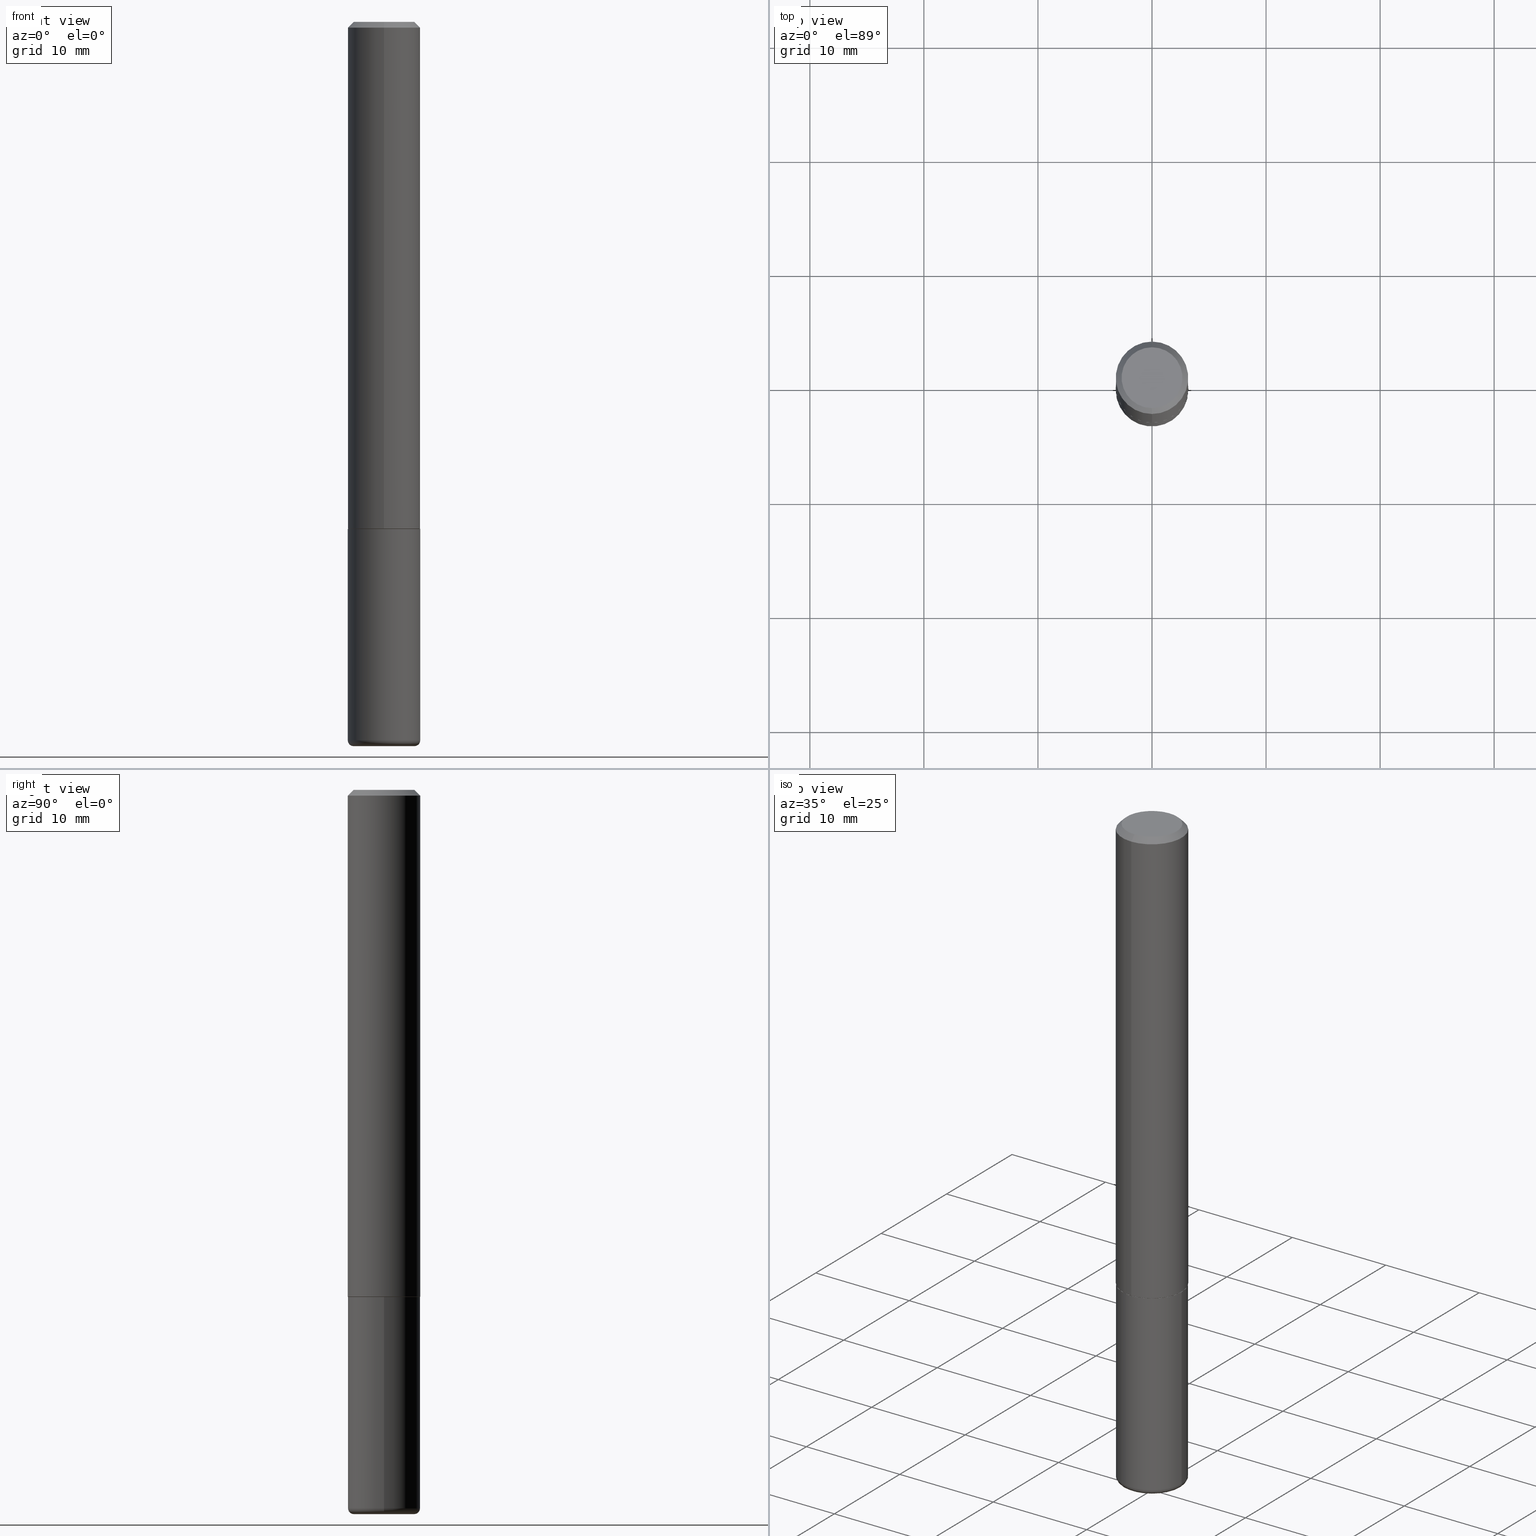
[diagram: canonical four-view strip — front | top / right | iso, engineering-drawing reading convention]
A machine part, canonical four-view strip (front | top / right | iso — engineering-drawing reading convention). The complete STEP part file that produces these views, byte-faithful:
ISO-10303-21;
HEADER;
FILE_DESCRIPTION (( 'STEP AP203' ),
    '1' );
FILE_NAME ('38363.STEP',
    '2024-03-03T00:57:25',
    ( '' ),
    ( '' ),
    'SwSTEP 2.0',
    'SolidWorks 2023',
    '' );
FILE_SCHEMA (( 'CONFIG_CONTROL_DESIGN' ));
ENDSEC;

DATA;
#1 = FACE_OUTER_BOUND ( 'NONE', #175, .T. ) ;
#2 = ORIENTED_EDGE ( 'NONE', *, *, #76, .T. ) ;
#3 = CONICAL_SURFACE ( 'NONE', #339, 0.1250000000000000000, 0.7853981633974473908 ) ;
#4 = ORIENTED_EDGE ( 'NONE', *, *, #275, .T. ) ;
#5 = CARTESIAN_POINT ( 'NONE',  ( 7.332110811570574327E-16, 0.1049999999999999267, -3.217228881981931301E-16 ) ) ;
#6 = CALENDAR_DATE ( 2024, 2, 3 ) ;
#7 = ORIENTED_EDGE ( 'NONE', *, *, #291, .F. ) ;
#8 = DIRECTION ( 'NONE',  ( 1.000000000000000000, -6.982962677686269077E-15, 4.883557194083113462E-29 ) ) ;
#9 = CONICAL_SURFACE ( 'NONE', #251, 0.1250000000000000000, 0.7853981633974473908 ) ;
#10 = ADVANCED_FACE ( 'NONE', ( #376 ), #301, .F. ) ;
#11 = DIRECTION ( 'NONE',  ( 6.982962677686265922E-15, 1.000000000000000000, -3.490276172475858378E-15 ) ) ;
#12 = ORIENTED_EDGE ( 'NONE', *, *, #198, .T. ) ;
#13 = ORIENTED_EDGE ( 'NONE', *, *, #166, .F. ) ;
#14 = UNCERTAINTY_MEASURE_WITH_UNIT (LENGTH_MEASURE( 1.000000000000000082E-05 ), #184, 'distance_accuracy_value', 'NONE');
#15 = ORIENTED_EDGE ( 'NONE', *, *, #371, .F. ) ;
#16 = CARTESIAN_POINT ( 'NONE',  ( 8.881784197001260212E-16, 0.1250000000000001110, -4.362845215594827410E-16 ) ) ;
#17 = DIRECTION ( 'NONE',  ( -6.982962677686266711E-15, -1.000000000000000000, 3.490276172475858772E-15 ) ) ;
#18 = AXIS2_PLACEMENT_3D ( 'NONE', #269, #110, #84 ) ;
#19 = PERSON_AND_ORGANIZATION ( #159, #388 ) ;
#20 = DIRECTION ( 'NONE',  ( -6.982962677686265922E-15, -1.000000000000000000, 3.490276172475858378E-15 ) ) ;
#21 = EDGE_CURVE ( 'NONE', #139, #290, #224, .T. ) ;
#22 = ADVANCED_BREP_SHAPE_REPRESENTATION ( '38363', ( #182, #318, #226 ), #148 ) ;
#23 = FACE_OUTER_BOUND ( 'NONE', #167, .T. ) ;
#24 = DATE_TIME_ROLE ( 'classification_date' ) ;
#25 = LINE ( 'NONE', #276, #185 ) ;
#26 = PERSON_AND_ORGANIZATION_ROLE ( 'classification_officer' ) ;
#27 = CIRCLE ( 'NONE', #18, 0.1050000000000000100 ) ;
#28 = PLANE ( 'NONE',  #317 ) ;
#29 = DIRECTION ( 'NONE',  ( -2.446310369361453361E-29, 3.490276172475858772E-15, 1.000000000000000000 ) ) ;
#30 = ADVANCED_FACE ( 'NONE', ( #240 ), #341, .T. ) ;
#31 = LINE ( 'NONE', #395, #100 ) ;
#32 = ORIENTED_EDGE ( 'NONE', *, *, #21, .T. ) ;
#33 = AXIS2_PLACEMENT_3D ( 'NONE', #415, #127, #20 ) ;
#34 = CC_DESIGN_SECURITY_CLASSIFICATION ( #332, ( #129 ) ) ;
#35 = DIRECTION ( 'NONE',  ( -4.851104656540959542E-15, -0.7071067811865493491, -0.7071067811865457964 ) ) ;
#36 = APPROVAL_ROLE ( '' ) ;
#37 = VERTEX_POINT ( 'NONE', #313 ) ;
#38 = LINE ( 'NONE', #197, #417 ) ;
#39 = ORIENTED_EDGE ( 'NONE', *, *, #371, .T. ) ;
#40 = CIRCLE ( 'NONE', #128, 0.1250000000000002498 ) ;
#41 = ADVANCED_FACE ( 'NONE', ( #154 ), #87, .T. ) ;
#42 = APPROVAL_PERSON_ORGANIZATION ( #277, #373, #355 ) ;
#43 = CARTESIAN_POINT ( 'NONE',  ( -0.1250000000000000000, -6.496304611953128320E-15, -1.750000000000000222 ) ) ;
#44 = ORIENTED_EDGE ( 'NONE', *, *, #359, .F. ) ;
#45 = DIRECTION ( 'NONE',  ( 4.937700262164543309E-15, 0.7071067811865444641, -0.7071067811865506814 ) ) ;
#46 = ORIENTED_EDGE ( 'NONE', *, *, #291, .T. ) ;
#47 = ADVANCED_FACE ( 'NONE', ( #346 ), #248, .T. ) ;
#48 = FACE_OUTER_BOUND ( 'NONE', #225, .T. ) ;
#49 = VERTEX_POINT ( 'NONE', #379 ) ;
#50 = AXIS2_PLACEMENT_3D ( 'NONE', #53, #183, #17 ) ;
#51 = APPROVAL_PERSON_ORGANIZATION ( #19, #233, #36 ) ;
#52 = CARTESIAN_POINT ( 'NONE',  ( 4.281043146382543451E-29, -6.107983301832753147E-15, -1.750000000000000222 ) ) ;
#53 = CARTESIAN_POINT ( 'NONE',  ( 0.000000000000000000, 0.000000000000000000, 0.000000000000000000 ) ) ;
#54 = CALENDAR_DATE ( 2024, 2, 3 ) ;
#55 = DIRECTION ( 'NONE',  ( -2.446310369361453361E-29, 3.490276172475858378E-15, 1.000000000000000000 ) ) ;
#56 = DIRECTION ( 'NONE',  ( 1.000000000000000000, -6.982962677686269077E-15, 4.883557194083113462E-29 ) ) ;
#57 = FACE_OUTER_BOUND ( 'NONE', #113, .T. ) ;
#58 = APPROVAL_DATE_TIME ( #347, #59 ) ;
#59 = APPROVAL ( #282, 'UNSPECIFIED' ) ;
#60 = PLANE ( 'NONE',  #66 ) ;
#61 = PERSON_AND_ORGANIZATION_ROLE ( 'design_supplier' ) ;
#62 = DIRECTION ( 'NONE',  ( -6.982962677686265922E-15, -1.000000000000000000, 4.406206441393973340E-15 ) ) ;
#63 = CIRCLE ( 'NONE', #222, 0.1250000000000002498 ) ;
#64 = CARTESIAN_POINT ( 'NONE',  ( -0.1050000000000000100, -7.912803847782896575E-15, -2.480000000000000426 ) ) ;
#65 = DIRECTION ( 'NONE',  ( 1.000000000000000000, -6.982962677686263555E-15, 0.000000000000000000 ) ) ;
#66 = AXIS2_PLACEMENT_3D ( 'NONE', #92, #213, #353 ) ;
#67 = MECHANICAL_CONTEXT ( 'NONE', #119, 'mechanical' ) ;
#68 = CIRCLE ( 'NONE', #246, 0.1239999999999999991 ) ;
#69 = CIRCLE ( 'NONE', #155, 0.1250000000000000000 ) ;
#70 = ORIENTED_EDGE ( 'NONE', *, *, #140, .T. ) ;
#71 = ADVANCED_FACE ( 'NONE', ( #57 ), #3, .T. ) ;
#72 = CC_DESIGN_PERSON_AND_ORGANIZATION_ASSIGNMENT ( #194, #61, ( #129 ) ) ;
#73 = DIRECTION ( 'NONE',  ( -2.446310369361453361E-29, 3.490276172475858772E-15, 1.000000000000000000 ) ) ;
#74 = ORIENTED_EDGE ( 'NONE', *, *, #216, .T. ) ;
#75 = FACE_OUTER_BOUND ( 'NONE', #302, .T. ) ;
#76 = EDGE_CURVE ( 'NONE', #179, #396, #151, .T. ) ;
#77 = ORIENTED_EDGE ( 'NONE', *, *, #275, .F. ) ;
#78 = CARTESIAN_POINT ( 'NONE',  ( 4.279570410823989044E-29, -6.110092342975505460E-15, -1.750000000000000222 ) ) ;
#79 = APPROVAL_DATE_TIME ( #400, #233 ) ;
#80 = ORIENTED_EDGE ( 'NONE', *, *, #217, .T. ) ;
#81 = CARTESIAN_POINT ( 'NONE',  ( 0.1250000000000000555, -9.531744055041784983E-15, -2.480000000000000426 ) ) ;
#82 = ORIENTED_EDGE ( 'NONE', *, *, #169, .T. ) ;
#83 = CIRCLE ( 'NONE', #310, 0.1239999999999999991 ) ;
#84 = DIRECTION ( 'NONE',  ( 1.000000000000000000, -6.982962677686258033E-15, 0.000000000000000000 ) ) ;
#85 = PRODUCT ( '38363', '38363', '', ( #67 ) ) ;
#86 = APPLICATION_PROTOCOL_DEFINITION ( 'international standard', 'config_control_design', 1994, #207 ) ;
#87 = CYLINDRICAL_SURFACE ( 'NONE', #330, 0.1250000000000000000 ) ;
#88 = AXIS2_PLACEMENT_3D ( 'NONE', #130, #98, #360 ) ;
#89 = CC_DESIGN_DATE_AND_TIME_ASSIGNMENT ( #284, #24, ( #332 ) ) ;
#90 = CARTESIAN_POINT ( 'NONE',  ( 6.064762639339139522E-29, -8.658873720331001644E-15, -2.480000000000000426 ) ) ;
#91 = DIRECTION ( 'NONE',  ( 2.446310369361453361E-29, -3.490276172475858772E-15, -1.000000000000000000 ) ) ;
#92 = CARTESIAN_POINT ( 'NONE',  ( 4.279570410823989044E-29, -6.110092342975505460E-15, -1.750000000000000222 ) ) ;
#93 = SHAPE_DEFINITION_REPRESENTATION ( #402, #22 ) ;
#94 = AXIS2_PLACEMENT_3D ( 'NONE', #403, #405, #363 ) ;
#95 = APPROVAL_STATUS ( 'not_yet_approved' ) ;
#96 = ADVANCED_FACE ( 'NONE', ( #23 ), #9, .T. ) ;
#97 = VERTEX_POINT ( 'NONE', #350 ) ;
#98 = DIRECTION ( 'NONE',  ( -2.445468806185136597E-29, 3.491481338843145583E-15, 1.000000000000000000 ) ) ;
#99 = ORIENTED_EDGE ( 'NONE', *, *, #166, .T. ) ;
#100 = VECTOR ( 'NONE', #45, 39.37007874015748143 ) ;
#101 = DIRECTION ( 'NONE',  ( -6.982962677686265922E-15, -1.000000000000000000, 4.406206441393973340E-15 ) ) ;
#102 = ORIENTED_EDGE ( 'NONE', *, *, #21, .F. ) ;
#103 = DIRECTION ( 'NONE',  ( -2.446310369361453080E-29, 3.490276172475858378E-15, 1.000000000000000000 ) ) ;
#104 = ORIENTED_EDGE ( 'NONE', *, *, #337, .T. ) ;
#105 = AXIS2_PLACEMENT_3D ( 'NONE', #5, #399, #11 ) ;
#106 = AXIS2_PLACEMENT_3D ( 'NONE', #211, #236, #369 ) ;
#107 = DIRECTION ( 'NONE',  ( -6.982962677686266711E-15, -1.000000000000000000, 3.491481338843145583E-15 ) ) ;
#108 = ORIENTED_EDGE ( 'NONE', *, *, #337, .F. ) ;
#109 = EDGE_CURVE ( 'NONE', #179, #37, #83, .T. ) ;
#110 = DIRECTION ( 'NONE',  ( -2.445468806185136597E-29, 3.491481338843145583E-15, 1.000000000000000000 ) ) ;
#111 = ORIENTED_EDGE ( 'NONE', *, *, #366, .F. ) ;
#112 = DIRECTION ( 'NONE',  ( -6.982962677686265922E-15, -1.000000000000000000, 3.490276172475858378E-15 ) ) ;
#113 = EDGE_LOOP ( 'NONE', ( #206, #370, #196, #135 ) ) ;
#114 = ORIENTED_EDGE ( 'NONE', *, *, #109, .F. ) ;
#115 = AXIS2_PLACEMENT_3D ( 'NONE', #336, #204, #334 ) ;
#116 = EDGE_CURVE ( 'NONE', #266, #401, #293, .T. ) ;
#117 = DATE_AND_TIME ( #54, #406 ) ;
#118 = DATE_TIME_ROLE ( 'creation_date' ) ;
#119 = APPLICATION_CONTEXT ( 'configuration controlled 3d designs of mechanical parts and assemblies' ) ;
#120 = CARTESIAN_POINT ( 'NONE',  ( 4.278596836013182697E-29, -6.104493025660276744E-15, -1.749000000000000110 ) ) ;
#121 = AXIS2_PLACEMENT_3D ( 'NONE', #123, #221, #190 ) ;
#122 = CARTESIAN_POINT ( 'NONE',  ( -8.575622497214408537E-16, -0.1250000000000000555, -0.01999999999999959102 ) ) ;
#123 = CARTESIAN_POINT ( 'NONE',  ( 0.000000000000000000, 0.000000000000000000, 0.000000000000000000 ) ) ;
#124 = DATE_AND_TIME ( #126, #261 ) ;
#125 = DIRECTION ( 'NONE',  ( -1.000000000000000000, 6.982962677686265922E-15, -4.876176775795935793E-29 ) ) ;
#126 = CALENDAR_DATE ( 2024, 2, 3 ) ;
#127 = DIRECTION ( 'NONE',  ( -2.446310369361453361E-29, 3.490276172475858772E-15, 1.000000000000000000 ) ) ;
#128 = AXIS2_PLACEMENT_3D ( 'NONE', #120, #245, #391 ) ;
#129 = PRODUCT_DEFINITION_FORMATION_WITH_SPECIFIED_SOURCE ( 'ANY', '', #85, .NOT_KNOWN. ) ;
#130 = CARTESIAN_POINT ( 'NONE',  ( 6.064762639339139522E-29, -8.658873720331001644E-15, -2.480000000000000426 ) ) ;
#131 = ORIENTED_EDGE ( 'NONE', *, *, #256, .T. ) ;
#132 = LINE ( 'NONE', #325, #191 ) ;
#133 = ADVANCED_FACE ( 'NONE', ( #408 ), #28, .T. ) ;
#134 = CARTESIAN_POINT ( 'NONE',  ( 4.281043146382543451E-29, -6.107983301832753147E-15, -1.750000000000000222 ) ) ;
#135 = ORIENTED_EDGE ( 'NONE', *, *, #381, .T. ) ;
#136 = TOROIDAL_SURFACE ( 'NONE', #374, 0.1050000000000000100, 0.02000000000000015307 ) ;
#137 = ORIENTED_EDGE ( 'NONE', *, *, #193, .F. ) ;
#138 = EDGE_LOOP ( 'NONE', ( #228, #74, #4, #44 ) ) ;
#139 = VERTEX_POINT ( 'NONE', #283 ) ;
#140 = EDGE_CURVE ( 'NONE', #308, #263, #199, .T. ) ;
#141 = AXIS2_PLACEMENT_3D ( 'NONE', #170, #292, #393 ) ;
#142 = CARTESIAN_POINT ( 'NONE',  ( 0.1250000000000000000, -6.982962677686288010E-15, -1.750000000000000222 ) ) ;
#143 = FACE_OUTER_BOUND ( 'NONE', #255, .T. ) ;
#144 = CARTESIAN_POINT ( 'NONE',  ( 0.1050000000000000100, -9.392084801488059965E-15, -2.480000000000000426 ) ) ;
#145 = VERTEX_POINT ( 'NONE', #122 ) ;
#146 = PRODUCT_RELATED_PRODUCT_CATEGORY ( 'detail', '', ( #85 ) ) ;
#147 = CARTESIAN_POINT ( 'NONE',  ( -8.728703347107421208E-16, -0.1250000000000063560, -1.748999999999999666 ) ) ;
#148 =( GEOMETRIC_REPRESENTATION_CONTEXT ( 3 ) GLOBAL_UNCERTAINTY_ASSIGNED_CONTEXT ( ( #14 ) ) GLOBAL_UNIT_ASSIGNED_CONTEXT ( ( #184, #223, #161 ) ) REPRESENTATION_CONTEXT ( 'NONE', 'WORKASPACE' ) );
#149 = APPROVAL_STATUS ( 'not_yet_approved' ) ;
#150 = CARTESIAN_POINT ( 'NONE',  ( -8.658873720330540358E-16, -0.1240000000000061053, -1.749999999999999556 ) ) ;
#151 = LINE ( 'NONE', #383, #153 ) ;
#152 = ADVANCED_FACE ( 'NONE', ( #215 ), #60, .F. ) ;
#153 = VECTOR ( 'NONE', #281, 39.37007874015748143 ) ;
#154 = FACE_OUTER_BOUND ( 'NONE', #201, .T. ) ;
#155 = AXIS2_PLACEMENT_3D ( 'NONE', #78, #243, #372 ) ;
#156 = COORDINATED_UNIVERSAL_TIME_OFFSET ( 5, 0, .BEHIND. ) ;
#157 = CARTESIAN_POINT ( 'NONE',  ( -2.970324451617953153E-29, -2.173750331693769768E-14, -2.500000000000000000 ) ) ;
#158 = APPROVAL_DATE_TIME ( #124, #373 ) ;
#159 = PERSON ( 'UNSPECIFIED', 'UNSPECIFIED', 'UNSPECIFIED', ('UNSPECIFIED'), ('UNSPECIFIED'), ('UNSPECIFIED') ) ;
#160 = DIRECTION ( 'NONE',  ( -1.000000000000000000, 7.105427357601014480E-15, 0.000000000000000000 ) ) ;
#161 =( NAMED_UNIT ( * ) SI_UNIT ( $, .STERADIAN. ) SOLID_ANGLE_UNIT ( ) );
#162 = DIRECTION ( 'NONE',  ( -2.446310369361453361E-29, 3.490276172475858772E-15, 1.000000000000000000 ) ) ;
#163 = CONICAL_SURFACE ( 'NONE', #398, 0.1239999999999999991, 0.7853981633975336552 ) ;
#164 = DIRECTION ( 'NONE',  ( 1.000000000000000000, 0.000000000000000000, 0.000000000000000000 ) ) ;
#165 = CARTESIAN_POINT ( 'NONE',  ( 6.064762639339139522E-29, -8.658873720331001644E-15, -2.480000000000000426 ) ) ;
#166 = EDGE_CURVE ( 'NONE', #331, #49, #259, .T. ) ;
#167 = EDGE_LOOP ( 'NONE', ( #364, #390, #234, #202 ) ) ;
#168 = PERSON_AND_ORGANIZATION ( #159, #388 ) ;
#169 = EDGE_CURVE ( 'NONE', #401, #266, #324, .T. ) ;
#170 = CARTESIAN_POINT ( 'NONE',  ( 6.113672015462842613E-29, -8.728703347107866520E-15, -2.500000000000000444 ) ) ;
#171 = AXIS2_PLACEMENT_3D ( 'NONE', #52, #181, #300 ) ;
#172 = LINE ( 'NONE', #296, #200 ) ;
#173 = EDGE_LOOP ( 'NONE', ( #70, #294 ) ) ;
#174 = FACE_OUTER_BOUND ( 'NONE', #389, .T. ) ;
#175 = EDGE_LOOP ( 'NONE', ( #328, #104, #7, #392 ) ) ;
#176 = ADVANCED_FACE ( 'NONE', ( #316 ), #136, .T. ) ;
#177 = COORDINATED_UNIVERSAL_TIME_OFFSET ( 5, 0, .BEHIND. ) ;
#178 = CYLINDRICAL_SURFACE ( 'NONE', #94, 0.1250000000000001110 ) ;
#179 = VERTEX_POINT ( 'NONE', #150 ) ;
#180 = TOROIDAL_SURFACE ( 'NONE', #410, 0.1050000000000000100, 0.02000000000000015307 ) ;
#181 = DIRECTION ( 'NONE',  ( -2.446310369361453361E-29, 3.490276172475858772E-15, 1.000000000000000000 ) ) ;
#182 = MANIFOLD_SOLID_BREP ( 'Body-Move/Copy2[1]', #210 ) ;
#183 = DIRECTION ( 'NONE',  ( -2.446310369361453361E-29, 3.490276172475858772E-15, 1.000000000000000000 ) ) ;
#184 =( CONVERSION_BASED_UNIT ( 'INCH', #342 ) LENGTH_UNIT ( ) NAMED_UNIT ( #268 ) );
#185 = VECTOR ( 'NONE', #407, 39.37007874015748143 ) ;
#186 = LOCAL_TIME ( 19, 57, 25.00000000000000000, #156 ) ;
#187 = CARTESIAN_POINT ( 'NONE',  ( 0.000000000000000000, 0.000000000000000000, 0.000000000000000000 ) ) ;
#188 = DIRECTION ( 'NONE',  ( 6.982962677686265922E-15, 1.000000000000000000, -3.483106191921935554E-15 ) ) ;
#189 = EDGE_CURVE ( 'NONE', #396, #145, #25, .T. ) ;
#190 = DIRECTION ( 'NONE',  ( 1.000000000000000000, -6.982962677686266711E-15, 4.876176775795935793E-29 ) ) ;
#191 = VECTOR ( 'NONE', #35, 39.37007874015748143 ) ;
#192 = CARTESIAN_POINT ( 'NONE',  ( -2.189746715388963618E-45, 3.124223679955351557E-31, 8.951221982354351893E-17 ) ) ;
#193 = EDGE_CURVE ( 'NONE', #307, #396, #40, .T. ) ;
#194 = PERSON_AND_ORGANIZATION ( #159, #388 ) ;
#195 = CARTESIAN_POINT ( 'NONE',  ( 4.892620738722911906E-31, -6.980552344951725975E-17, -0.02000000000000002470 ) ) ;
#196 = ORIENTED_EDGE ( 'NONE', *, *, #279, .T. ) ;
#197 = CARTESIAN_POINT ( 'NONE',  ( -0.1250000000000000000, 8.881784197001252323E-16, -6.148668862818632227E-30 ) ) ;
#198 = EDGE_CURVE ( 'NONE', #49, #263, #38, .T. ) ;
#199 = CIRCLE ( 'NONE', #247, 0.1250000000000000000 ) ;
#200 = VECTOR ( 'NONE', #322, 39.37007874015748143 ) ;
#201 = EDGE_LOOP ( 'NONE', ( #80, #12, #297, #77 ) ) ;
#202 = ORIENTED_EDGE ( 'NONE', *, *, #279, .F. ) ;
#203 = AXIS2_PLACEMENT_3D ( 'NONE', #303, #103, #112 ) ;
#204 = DIRECTION ( 'NONE',  ( -2.446310369361453361E-29, 3.490276172475858772E-15, 1.000000000000000000 ) ) ;
#205 = CARTESIAN_POINT ( 'NONE',  ( 6.064762639339139522E-29, -8.658873720331001644E-15, -2.480000000000000426 ) ) ;
#206 = ORIENTED_EDGE ( 'NONE', *, *, #208, .F. ) ;
#207 = APPLICATION_CONTEXT ( 'configuration controlled 3d designs of mechanical parts and assemblies' ) ;
#208 = EDGE_CURVE ( 'NONE', #266, #145, #132, .T. ) ;
#209 = EDGE_LOOP ( 'NONE', ( #333, #15 ) ) ;
#210 = CLOSED_SHELL ( 'NONE', ( #41, #354, #152, #47, #176, #133 ) ) ;
#211 = CARTESIAN_POINT ( 'NONE',  ( 4.892620738722911906E-31, -6.980552344951725975E-17, -0.02000000000000002470 ) ) ;
#212 = DIRECTION ( 'NONE',  ( 1.000000000000000000, -6.982962677686275388E-15, 0.000000000000000000 ) ) ;
#213 = DIRECTION ( 'NONE',  ( 2.438088387897960049E-29, -3.491481338843145188E-15, -1.000000000000000000 ) ) ;
#214 = ADVANCED_FACE ( 'NONE', ( #1 ), #163, .T. ) ;
#215 = FACE_OUTER_BOUND ( 'NONE', #173, .T. ) ;
#216 = EDGE_CURVE ( 'NONE', #49, #290, #344, .T. ) ;
#217 = EDGE_CURVE ( 'NONE', #290, #49, #265, .T. ) ;
#218 = DIRECTION ( 'NONE',  ( 6.982962677686265922E-15, 1.000000000000000000, -3.483106191921935554E-15 ) ) ;
#219 = PERSON_AND_ORGANIZATION ( #159, #388 ) ;
#220 = AXIS2_PLACEMENT_3D ( 'NONE', #64, #382, #160 ) ;
#221 = DIRECTION ( 'NONE',  ( -2.445468806185136597E-29, 3.491481338843145583E-15, 1.000000000000000000 ) ) ;
#222 = AXIS2_PLACEMENT_3D ( 'NONE', #262, #271, #264 ) ;
#223 =( NAMED_UNIT ( * ) PLANE_ANGLE_UNIT ( ) SI_UNIT ( $, .RADIAN. ) );
#224 = CIRCLE ( 'NONE', #286, 0.02000000000000016348 ) ;
#225 = EDGE_LOOP ( 'NONE', ( #114, #404 ) ) ;
#226 = AXIS2_PLACEMENT_3D ( 'NONE', #253, #287, #164 ) ;
#227 = ORIENTED_EDGE ( 'NONE', *, *, #217, .F. ) ;
#228 = ORIENTED_EDGE ( 'NONE', *, *, #198, .F. ) ;
#229 = CARTESIAN_POINT ( 'NONE',  ( -0.1050000000000000100, -7.876664387595318143E-15, -2.500000000000000444 ) ) ;
#230 = ORIENTED_EDGE ( 'NONE', *, *, #387, .T. ) ;
#231 = CC_DESIGN_APPROVAL ( #59, ( #332 ) ) ;
#232 = PLANE ( 'NONE',  #203 ) ;
#233 = APPROVAL ( #149, 'UNSPECIFIED' ) ;
#234 = ORIENTED_EDGE ( 'NONE', *, *, #366, .T. ) ;
#235 = CC_DESIGN_DATE_AND_TIME_ASSIGNMENT ( #117, #118, ( #357 ) ) ;
#236 = DIRECTION ( 'NONE',  ( -2.446310369361453361E-29, 3.490276172475858772E-15, 1.000000000000000000 ) ) ;
#237 = EDGE_CURVE ( 'NONE', #139, #331, #305, .T. ) ;
#238 = ORIENTED_EDGE ( 'NONE', *, *, #216, .F. ) ;
#239 = DIRECTION ( 'NONE',  ( 5.024295867788490741E-15, 0.7071067811866103003, 0.7071067811864847341 ) ) ;
#240 = FACE_OUTER_BOUND ( 'NONE', #394, .T. ) ;
#241 = ORIENTED_EDGE ( 'NONE', *, *, #189, .T. ) ;
#242 = CIRCLE ( 'NONE', #106, 0.1250000000000000000 ) ;
#243 = DIRECTION ( 'NONE',  ( -2.445468806185136597E-29, 3.491481338843145583E-15, 1.000000000000000000 ) ) ;
#244 = PERSON_AND_ORGANIZATION ( #159, #388 ) ;
#245 = DIRECTION ( 'NONE',  ( -2.446310369361453361E-29, 3.490276172475858772E-15, 1.000000000000000000 ) ) ;
#246 = AXIS2_PLACEMENT_3D ( 'NONE', #361, #73, #329 ) ;
#247 = AXIS2_PLACEMENT_3D ( 'NONE', #385, #413, #321 ) ;
#248 = CYLINDRICAL_SURFACE ( 'NONE', #121, 0.1250000000000000000 ) ;
#249 = PERSON_AND_ORGANIZATION_ROLE ( 'creator' ) ;
#250 = DIRECTION ( 'NONE',  ( 2.446310369361453361E-29, -3.490276172475858772E-15, -1.000000000000000000 ) ) ;
#251 = AXIS2_PLACEMENT_3D ( 'NONE', #195, #91, #218 ) ;
#252 = CONICAL_SURFACE ( 'NONE', #171, 0.1239999999999999991, 0.7853981633975336552 ) ;
#253 = CARTESIAN_POINT ( 'NONE',  ( 0.000000000000000000, 0.000000000000000000, 0.000000000000000000 ) ) ;
#254 = CARTESIAN_POINT ( 'NONE',  ( -7.889572697437255223E-16, -0.1049999999999999267, 4.559912179335083715E-16 ) ) ;
#255 = EDGE_LOOP ( 'NONE', ( #46, #230, #111, #298 ) ) ;
#256 = EDGE_CURVE ( 'NONE', #37, #179, #68, .T. ) ;
#257 = DIRECTION ( 'NONE',  ( -2.445468806185136597E-29, 3.491481338843145583E-15, 1.000000000000000000 ) ) ;
#258 = COORDINATED_UNIVERSAL_TIME_OFFSET ( 5, 0, .BEHIND. ) ;
#259 = CIRCLE ( 'NONE', #220, 0.02000000000000016348 ) ;
#260 = ORIENTED_EDGE ( 'NONE', *, *, #193, .T. ) ;
#261 = LOCAL_TIME ( 19, 57, 25.00000000000000000, #416 ) ;
#262 = CARTESIAN_POINT ( 'NONE',  ( 4.278596836013182697E-29, -6.104493025660276744E-15, -1.749000000000000110 ) ) ;
#263 = VERTEX_POINT ( 'NONE', #43 ) ;
#264 = DIRECTION ( 'NONE',  ( -6.982962677686265133E-15, -1.000000000000000000, 4.370956789862812472E-15 ) ) ;
#265 = CIRCLE ( 'NONE', #88, 0.1249999999999999861 ) ;
#266 = VERTEX_POINT ( 'NONE', #254 ) ;
#267 = CC_DESIGN_APPROVAL ( #233, ( #357 ) ) ;
#268 = DIMENSIONAL_EXPONENTS ( 1.000000000000000000, 0.000000000000000000, 0.000000000000000000, 0.000000000000000000, 0.000000000000000000, 0.000000000000000000, 0.000000000000000000 ) ;
#269 = CARTESIAN_POINT ( 'NONE',  ( 6.113672015462842613E-29, -8.728703347107866520E-15, -2.500000000000000444 ) ) ;
#270 = ORIENTED_EDGE ( 'NONE', *, *, #381, .F. ) ;
#271 = DIRECTION ( 'NONE',  ( -2.446310369361453361E-29, 3.490276172475858772E-15, 1.000000000000000000 ) ) ;
#272 = CARTESIAN_POINT ( 'NONE',  ( 8.030407079339205337E-16, 0.1049999999999999267, -2.769667782864213337E-16 ) ) ;
#273 = CC_DESIGN_APPROVAL ( #373, ( #129 ) ) ;
#274 = DESIGN_CONTEXT ( 'detailed design', #207, 'design' ) ;
#275 = EDGE_CURVE ( 'NONE', #290, #308, #172, .T. ) ;
#276 = CARTESIAN_POINT ( 'NONE',  ( -8.728703347107841277E-16, -0.1250000000000001110, 4.362845215594827410E-16 ) ) ;
#277 = PERSON_AND_ORGANIZATION ( #159, #388 ) ;
#278 = CARTESIAN_POINT ( 'NONE',  ( 4.281043146382543451E-29, -6.107983301832753147E-15, -1.750000000000000222 ) ) ;
#279 = EDGE_CURVE ( 'NONE', #401, #97, #31, .T. ) ;
#280 = LOCAL_TIME ( 19, 57, 25.00000000000000000, #177 ) ;
#281 = DIRECTION ( 'NONE',  ( -4.937700262164969294E-15, -0.7071067811866054154, 0.7071067811864896191 ) ) ;
#282 = APPROVAL_STATUS ( 'not_yet_approved' ) ;
#283 = CARTESIAN_POINT ( 'NONE',  ( 0.1050000000000000100, -9.461914428264923263E-15, -2.500000000000000444 ) ) ;
#284 = DATE_AND_TIME ( #349, #186 ) ;
#285 = DIRECTION ( 'NONE',  ( -2.446310369361453361E-29, 3.490276172475858772E-15, 1.000000000000000000 ) ) ;
#286 = AXIS2_PLACEMENT_3D ( 'NONE', #144, #107, #212 ) ;
#287 = DIRECTION ( 'NONE',  ( 0.000000000000000000, 0.000000000000000000, 1.000000000000000000 ) ) ;
#288 = DIRECTION ( 'NONE',  ( -2.445468806185136877E-29, 3.491481338843145188E-15, 1.000000000000000000 ) ) ;
#289 = PERSON_AND_ORGANIZATION_ROLE ( 'creator' ) ;
#290 = VERTEX_POINT ( 'NONE', #81 ) ;
#291 = EDGE_CURVE ( 'NONE', #396, #307, #63, .T. ) ;
#292 = DIRECTION ( 'NONE',  ( -2.445468806185136597E-29, 3.491481338843145583E-15, 1.000000000000000000 ) ) ;
#293 = CIRCLE ( 'NONE', #352, 0.1049999999999999267 ) ;
#294 = ORIENTED_EDGE ( 'NONE', *, *, #359, .T. ) ;
#295 = VECTOR ( 'NONE', #239, 39.37007874015748143 ) ;
#296 = CARTESIAN_POINT ( 'NONE',  ( 0.1250000000000000000, -8.728703347107833388E-16, 6.095220969744919741E-30 ) ) ;
#297 = ORIENTED_EDGE ( 'NONE', *, *, #140, .F. ) ;
#298 = ORIENTED_EDGE ( 'NONE', *, *, #189, .F. ) ;
#299 = CC_DESIGN_PERSON_AND_ORGANIZATION_ASSIGNMENT ( #314, #249, ( #129 ) ) ;
#300 = DIRECTION ( 'NONE',  ( -6.982962677686265922E-15, -1.000000000000000000, 4.406206441393973340E-15 ) ) ;
#301 = PLANE ( 'NONE',  #105 ) ;
#302 = EDGE_LOOP ( 'NONE', ( #362, #99, #227, #102 ) ) ;
#303 = CARTESIAN_POINT ( 'NONE',  ( 4.281043146382543451E-29, -6.107983301832753147E-15, -1.750000000000000222 ) ) ;
#304 = ORIENTED_EDGE ( 'NONE', *, *, #387, .F. ) ;
#305 = CIRCLE ( 'NONE', #141, 0.1050000000000000100 ) ;
#306 = CIRCLE ( 'NONE', #115, 0.1250000000000000000 ) ;
#307 = VERTEX_POINT ( 'NONE', #338 ) ;
#308 = VERTEX_POINT ( 'NONE', #142 ) ;
#309 = LINE ( 'NONE', #16, #319 ) ;
#310 = AXIS2_PLACEMENT_3D ( 'NONE', #278, #29, #62 ) ;
#311 = APPROVAL_PERSON_ORGANIZATION ( #219, #59, #412 ) ;
#312 = DIRECTION ( 'NONE',  ( 1.000000000000000000, -6.982962677686266711E-15, 4.876176775795935793E-29 ) ) ;
#313 = CARTESIAN_POINT ( 'NONE',  ( 8.846257060213682142E-16, 0.1239999999999938790, -1.750000000000000666 ) ) ;
#314 = PERSON_AND_ORGANIZATION ( #159, #388 ) ;
#315 = ADVANCED_FACE ( 'NONE', ( #143 ), #178, .T. ) ;
#316 = FACE_OUTER_BOUND ( 'NONE', #335, .T. ) ;
#317 = AXIS2_PLACEMENT_3D ( 'NONE', #157, #348, #125 ) ;
#318 = MANIFOLD_SOLID_BREP ( 'Body-Move/Copy2[2]', #358 ) ;
#319 = VECTOR ( 'NONE', #55, 39.37007874015748143 ) ;
#320 = DIRECTION ( 'NONE',  ( -6.982962677686265922E-15, -1.000000000000000000, 3.490276172475858378E-15 ) ) ;
#321 = DIRECTION ( 'NONE',  ( 1.000000000000000000, -6.982962677686262766E-15, 0.000000000000000000 ) ) ;
#322 = DIRECTION ( 'NONE',  ( -2.445468806185136877E-29, 3.491481338843145188E-15, 1.000000000000000000 ) ) ;
#323 = ADVANCED_FACE ( 'NONE', ( #48 ), #232, .F. ) ;
#324 = CIRCLE ( 'NONE', #33, 0.1049999999999999267 ) ;
#325 = CARTESIAN_POINT ( 'NONE',  ( -8.575622497214408537E-16, -0.1250000000000000555, -0.01999999999999959102 ) ) ;
#326 = CC_DESIGN_PERSON_AND_ORGANIZATION_ASSIGNMENT ( #168, #289, ( #357 ) ) ;
#327 = ORIENTED_EDGE ( 'NONE', *, *, #116, .T. ) ;
#328 = ORIENTED_EDGE ( 'NONE', *, *, #109, .T. ) ;
#329 = DIRECTION ( 'NONE',  ( -6.982962677686265922E-15, -1.000000000000000000, 4.406206441393973340E-15 ) ) ;
#330 = AXIS2_PLACEMENT_3D ( 'NONE', #187, #378, #312 ) ;
#331 = VERTEX_POINT ( 'NONE', #229 ) ;
#332 = SECURITY_CLASSIFICATION ( '', '', #386 ) ;
#333 = ORIENTED_EDGE ( 'NONE', *, *, #237, .F. ) ;
#334 = DIRECTION ( 'NONE',  ( -6.982962677686265922E-15, -1.000000000000000000, 3.483106191921935554E-15 ) ) ;
#335 = EDGE_LOOP ( 'NONE', ( #13, #39, #32, #238 ) ) ;
#336 = CARTESIAN_POINT ( 'NONE',  ( 4.892620738722911906E-31, -6.980552344951725975E-17, -0.02000000000000002470 ) ) ;
#337 = EDGE_CURVE ( 'NONE', #37, #307, #340, .T. ) ;
#338 = CARTESIAN_POINT ( 'NONE',  ( 8.881784197001479121E-16, 0.1249999999999941019, -1.749000000000000554 ) ) ;
#339 = AXIS2_PLACEMENT_3D ( 'NONE', #411, #250, #188 ) ;
#340 = LINE ( 'NONE', #397, #295 ) ;
#341 = CYLINDRICAL_SURFACE ( 'NONE', #50, 0.1250000000000001110 ) ;
#342 = LENGTH_MEASURE_WITH_UNIT ( LENGTH_MEASURE( 0.02539999999999999897 ), #375 );
#343 = DIRECTION ( 'NONE',  ( -2.445468806185136597E-29, 3.491481338843145583E-15, 1.000000000000000000 ) ) ;
#344 = CIRCLE ( 'NONE', #380, 0.1249999999999999861 ) ;
#345 = CC_DESIGN_PERSON_AND_ORGANIZATION_ASSIGNMENT ( #414, #26, ( #332 ) ) ;
#346 = FACE_OUTER_BOUND ( 'NONE', #138, .T. ) ;
#347 = DATE_AND_TIME ( #409, #365 ) ;
#348 = DIRECTION ( 'NONE',  ( 2.438088387897960049E-29, -3.491481338843145188E-15, -1.000000000000000000 ) ) ;
#349 = CALENDAR_DATE ( 2024, 2, 3 ) ;
#350 = CARTESIAN_POINT ( 'NONE',  ( 8.728703347107837333E-16, 0.1249999999999999306, -0.02000000000000046185 ) ) ;
#351 = COORDINATED_UNIVERSAL_TIME_OFFSET ( 5, 0, .BEHIND. ) ;
#352 = AXIS2_PLACEMENT_3D ( 'NONE', #192, #285, #320 ) ;
#353 = DIRECTION ( 'NONE',  ( -1.000000000000000000, 6.982962677686265922E-15, -4.876176775795935793E-29 ) ) ;
#354 = ADVANCED_FACE ( 'NONE', ( #75 ), #180, .T. ) ;
#355 = APPROVAL_ROLE ( '' ) ;
#356 = APPLICATION_PROTOCOL_DEFINITION ( 'international standard', 'config_control_design', 1994, #119 ) ;
#357 = PRODUCT_DEFINITION ( 'UNKNOWN', '', #129, #274 ) ;
#358 = CLOSED_SHELL ( 'NONE', ( #214, #315, #96, #71, #30, #384, #323, #10 ) ) ;
#359 = EDGE_CURVE ( 'NONE', #263, #308, #69, .T. ) ;
#360 = DIRECTION ( 'NONE',  ( 1.000000000000000000, -6.982962677686263555E-15, 0.000000000000000000 ) ) ;
#361 = CARTESIAN_POINT ( 'NONE',  ( 4.281043146382543451E-29, -6.107983301832753147E-15, -1.750000000000000222 ) ) ;
#362 = ORIENTED_EDGE ( 'NONE', *, *, #237, .T. ) ;
#363 = DIRECTION ( 'NONE',  ( -6.982962677686266711E-15, -1.000000000000000000, 3.490276172475858772E-15 ) ) ;
#364 = ORIENTED_EDGE ( 'NONE', *, *, #116, .F. ) ;
#365 = LOCAL_TIME ( 19, 57, 25.00000000000000000, #351 ) ;
#366 = EDGE_CURVE ( 'NONE', #145, #97, #306, .T. ) ;
#367 = DIRECTION ( 'NONE',  ( -2.445468806185136597E-29, 3.491481338843145583E-15, 1.000000000000000000 ) ) ;
#368 = EDGE_LOOP ( 'NONE', ( #82, #327 ) ) ;
#369 = DIRECTION ( 'NONE',  ( -6.982962677686265922E-15, -1.000000000000000000, 3.483106191921935554E-15 ) ) ;
#370 = ORIENTED_EDGE ( 'NONE', *, *, #169, .F. ) ;
#371 = EDGE_CURVE ( 'NONE', #331, #139, #27, .T. ) ;
#372 = DIRECTION ( 'NONE',  ( 1.000000000000000000, -6.982962677686262766E-15, 0.000000000000000000 ) ) ;
#373 = APPROVAL ( #95, 'UNSPECIFIED' ) ;
#374 = AXIS2_PLACEMENT_3D ( 'NONE', #90, #343, #56 ) ;
#375 =( LENGTH_UNIT ( ) NAMED_UNIT ( * ) SI_UNIT ( $, .METRE. ) );
#376 = FACE_OUTER_BOUND ( 'NONE', #368, .T. ) ;
#377 = PERSON_AND_ORGANIZATION_ROLE ( 'design_owner' ) ;
#378 = DIRECTION ( 'NONE',  ( -2.445468806185136597E-29, 3.491481338843145583E-15, 1.000000000000000000 ) ) ;
#379 = CARTESIAN_POINT ( 'NONE',  ( -0.1250000000000000555, -7.770695300630876412E-15, -2.480000000000000426 ) ) ;
#380 = AXIS2_PLACEMENT_3D ( 'NONE', #165, #257, #65 ) ;
#381 = EDGE_CURVE ( 'NONE', #97, #145, #242, .T. ) ;
#382 = DIRECTION ( 'NONE',  ( 7.105427357601001859E-15, 1.000000000000000000, -3.491481338843145583E-15 ) ) ;
#383 = CARTESIAN_POINT ( 'NONE',  ( -8.658873720330540358E-16, -0.1240000000000061053, -1.749999999999999556 ) ) ;
#384 = ADVANCED_FACE ( 'NONE', ( #174 ), #252, .T. ) ;
#385 = CARTESIAN_POINT ( 'NONE',  ( 4.279570410823989044E-29, -6.110092342975505460E-15, -1.750000000000000222 ) ) ;
#386 = SECURITY_CLASSIFICATION_LEVEL ( 'unclassified' ) ;
#387 = EDGE_CURVE ( 'NONE', #307, #97, #309, .T. ) ;
#388 = ORGANIZATION ( 'UNSPECIFIED', 'UNSPECIFIED', '' ) ;
#389 = EDGE_LOOP ( 'NONE', ( #108, #131, #2, #137 ) ) ;
#390 = ORIENTED_EDGE ( 'NONE', *, *, #208, .T. ) ;
#391 = DIRECTION ( 'NONE',  ( -6.982962677686265133E-15, -1.000000000000000000, 4.370956789862812472E-15 ) ) ;
#392 = ORIENTED_EDGE ( 'NONE', *, *, #76, .F. ) ;
#393 = DIRECTION ( 'NONE',  ( 1.000000000000000000, -6.982962677686258033E-15, 0.000000000000000000 ) ) ;
#394 = EDGE_LOOP ( 'NONE', ( #304, #260, #241, #270 ) ) ;
#395 = CARTESIAN_POINT ( 'NONE',  ( 8.728703347107837333E-16, 0.1249999999999999306, -0.02000000000000046185 ) ) ;
#396 = VERTEX_POINT ( 'NONE', #147 ) ;
#397 = CARTESIAN_POINT ( 'NONE',  ( 8.810729923425669213E-16, 0.1239999999999938790, -1.750000000000000666 ) ) ;
#398 = AXIS2_PLACEMENT_3D ( 'NONE', #134, #162, #101 ) ;
#399 = DIRECTION ( 'NONE',  ( 2.446310369361453080E-29, -3.490276172475858378E-15, -1.000000000000000000 ) ) ;
#400 = DATE_AND_TIME ( #6, #280 ) ;
#401 = VERTEX_POINT ( 'NONE', #272 ) ;
#402 = PRODUCT_DEFINITION_SHAPE ( 'NONE', 'NONE',  #357 ) ;
#403 = CARTESIAN_POINT ( 'NONE',  ( 0.000000000000000000, 0.000000000000000000, 0.000000000000000000 ) ) ;
#404 = ORIENTED_EDGE ( 'NONE', *, *, #256, .F. ) ;
#405 = DIRECTION ( 'NONE',  ( -2.446310369361453361E-29, 3.490276172475858772E-15, 1.000000000000000000 ) ) ;
#406 = LOCAL_TIME ( 19, 57, 25.00000000000000000, #258 ) ;
#407 = DIRECTION ( 'NONE',  ( -2.446310369361453361E-29, 3.490276172475858378E-15, 1.000000000000000000 ) ) ;
#408 = FACE_OUTER_BOUND ( 'NONE', #209, .T. ) ;
#409 = CALENDAR_DATE ( 2024, 2, 3 ) ;
#410 = AXIS2_PLACEMENT_3D ( 'NONE', #205, #367, #8 ) ;
#411 = CARTESIAN_POINT ( 'NONE',  ( 4.892620738722911906E-31, -6.980552344951725975E-17, -0.02000000000000002470 ) ) ;
#412 = APPROVAL_ROLE ( '' ) ;
#413 = DIRECTION ( 'NONE',  ( -2.445468806185136597E-29, 3.491481338843145583E-15, 1.000000000000000000 ) ) ;
#414 = PERSON_AND_ORGANIZATION ( #159, #388 ) ;
#415 = CARTESIAN_POINT ( 'NONE',  ( -2.189746715388963618E-45, 3.124223679955351557E-31, 8.951221982354351893E-17 ) ) ;
#416 = COORDINATED_UNIVERSAL_TIME_OFFSET ( 5, 0, .BEHIND. ) ;
#417 = VECTOR ( 'NONE', #288, 39.37007874015748143 ) ;
#418 = CC_DESIGN_PERSON_AND_ORGANIZATION_ASSIGNMENT ( #244, #377, ( #85 ) ) ;
ENDSEC;
END-ISO-10303-21;
